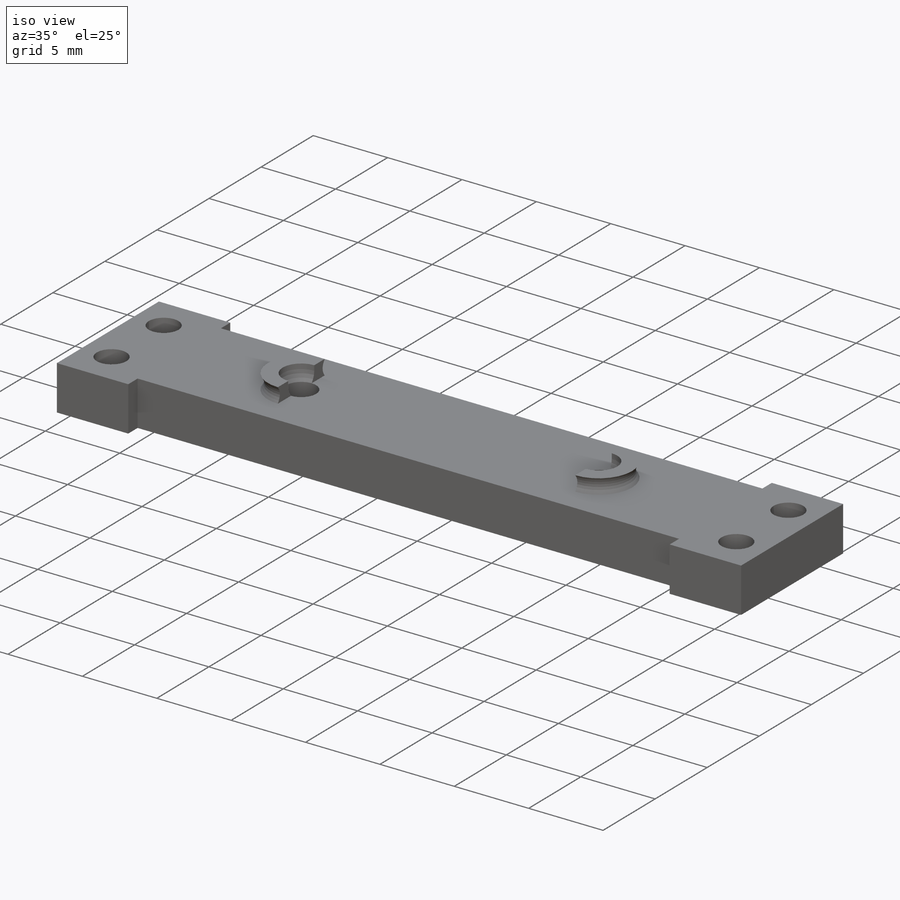
[diagram: iso view]
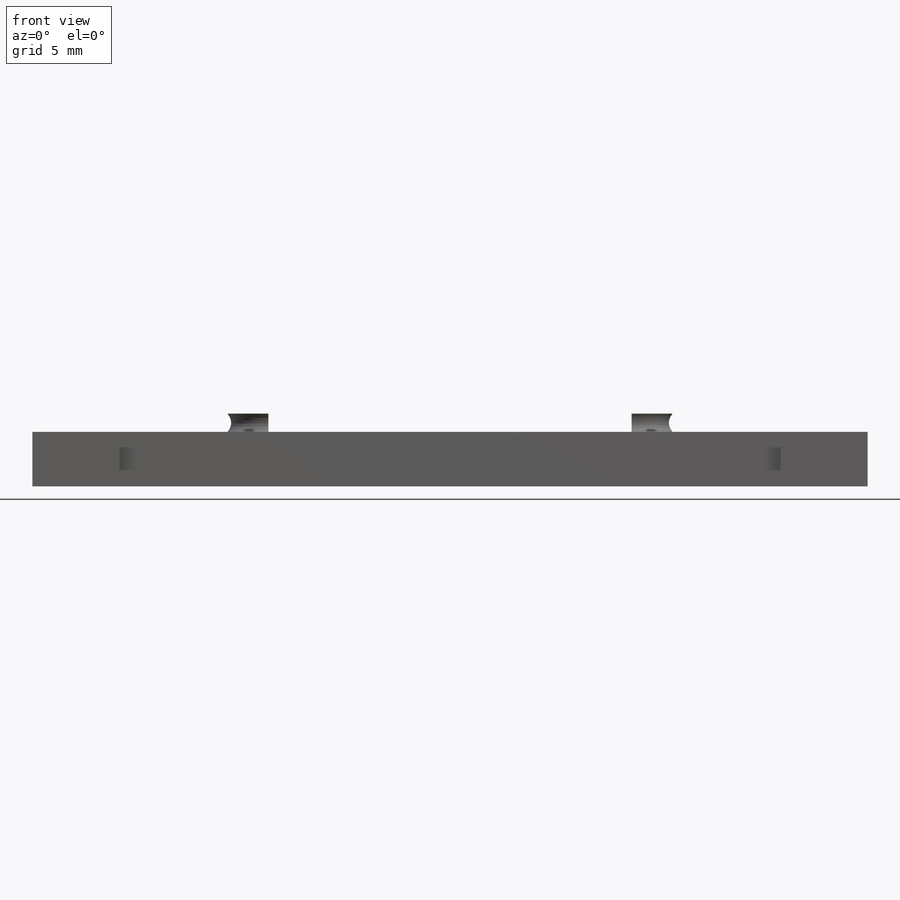
[diagram: front view]
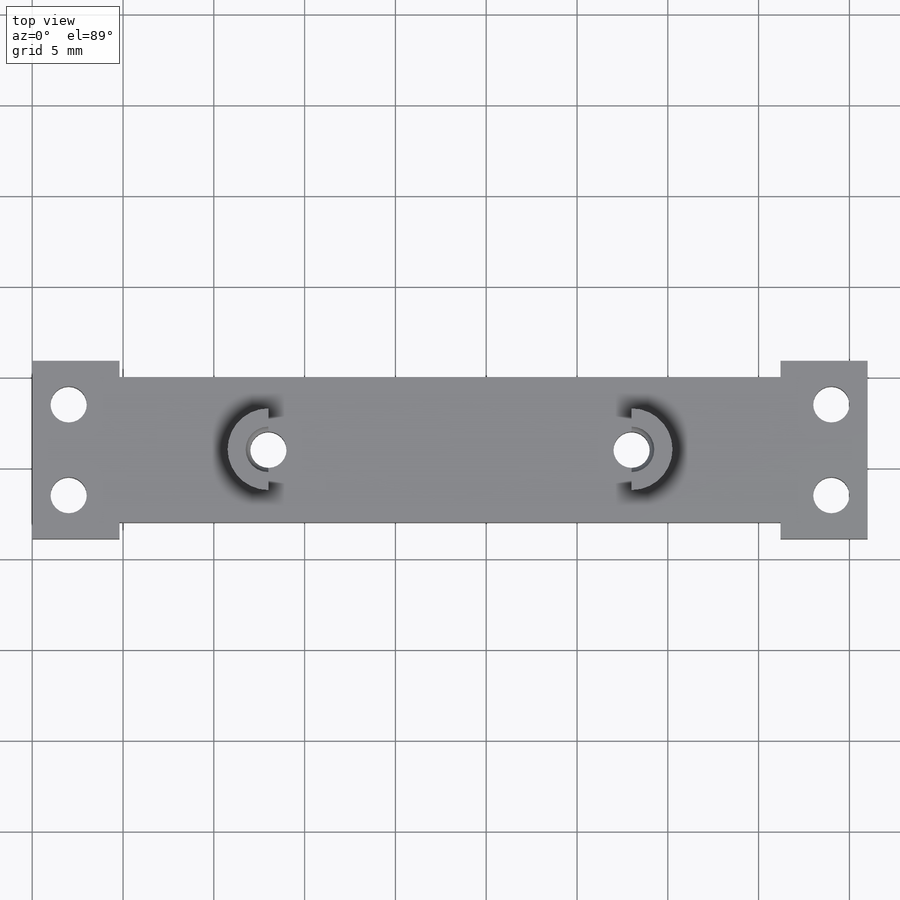
[diagram: top view]
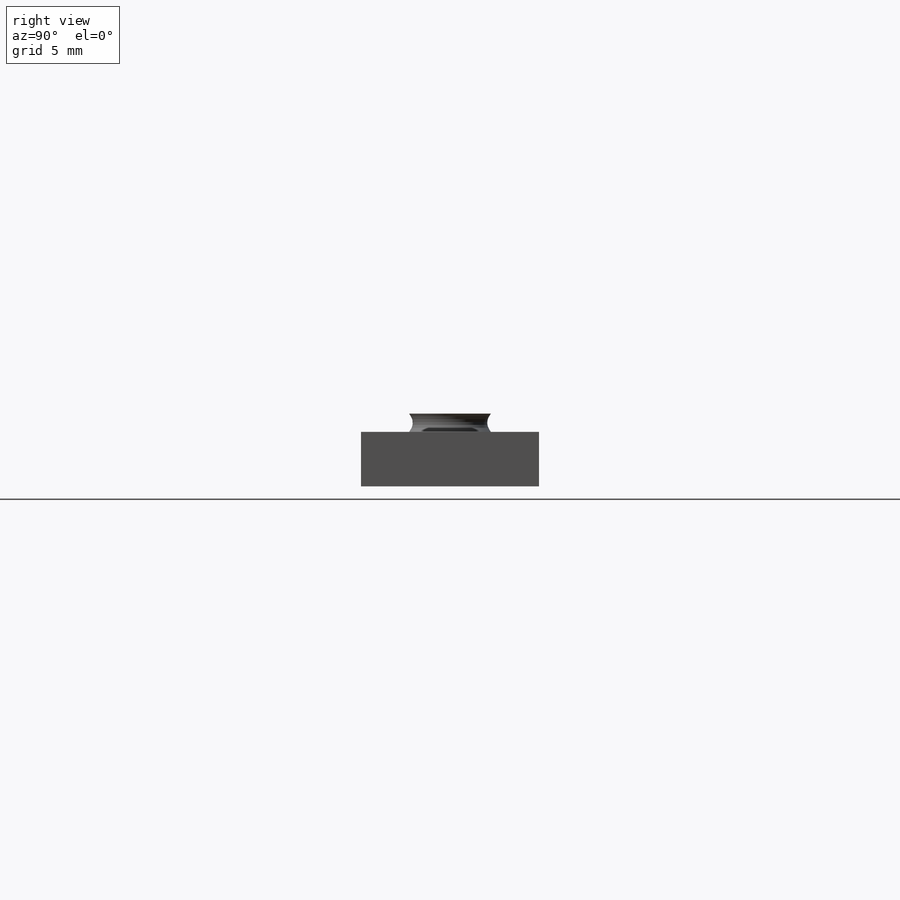
[diagram: right view]
SOLIDWORKS PART (.sldprt)
format: sldprt  version: not decoded by parser v0  size: 496,128 bytes
history: native  units: mm
features: sketch x18, cut_extrude x6, extrude x4, sweep x4, plane x3, fillet x2, material x1 (+9 scaffold rows collapsed)
feature tree (47):
  scaffold x9  (default folders/planes/origin — collapsed)
  material  "材质 <未指定>"
  plane  "前视基准面"
  plane  "上视基准面"
  plane  "右视基准面"
  sketch  "草图1"  dims[c1.D5=2.0mm c1.D6=2.0mm c1.D11=2.0mm c1.D12=2.0mm c1.D1=8.0mm c1.D2=36.0mm c1.D3=36.0mm c1.D4=~33.532799mm c2.D5=21.0mm c2.D6=21.0mm c2.D7=1.0mm c2.D8=1.0mm c2.D9=1.0mm c2.D10=1.0mm c2.D11=2.5mm c2.D12=2.5mm c2.D13=42.0mm c2.D14=~12.532799mm c2.D4=23.0mm c3.D14=23.0mm]
  extrude  "凸台-拉伸2"  Depth=4mm
  sketch  "草图2"  dims[c1.D1=4.5mm c1.D4=4.5mm c2.D1=~2.234155mm c2.D2=2.25mm c2.D3=1.25mm c3.D1=2.25mm c3.D2=4.5mm c3.D4=4.5mm c3.D5=2.25mm c4.D2=7.9mm c4.D3=7.9mm c4.D5=7.9mm c5.D2=8.0mm c5.D1=7.9mm c5.D3=7.9mm c5.D4=15.8mm c6.D1=7.9mm c6.D3=7.9mm]
  extrude  "凸台-拉伸3"  Depth=1mm
  sketch  "草图3"  dims[D3=1.5mm D4=1.5mm D1=7.9mm D2=7.9mm]
  cut_extrude  "切除-拉伸2"  Depth=1mm
  sketch  "草图4"  dims[D1=0.6mm D2=0.6mm]
  sketch  "草图5"
  sweep  "切除-扫描2"
  sketch  "草图8"  dims[D1=0.6mm D2=0.6mm]
  sketch  "草图9"
  sweep  "切除-扫描3"
  sketch  "草图10"
  cut_extrude  "切除-拉伸3"  Depth=3mm
  sketch  "草图11"  dims[D1=10.0mm]
  cut_extrude  "切除-拉伸4"  Depth=10mm
  sketch  "草图12"  dims[D3=2.25mm D4=2.25mm D5=1.25mm D6=1.25mm D1=10.0mm D2=10.0mm]
  extrude  "凸台-拉伸4"  Depth=1mm
  sketch  "草图13"  dims[D1=0.8mm]
  sketch  "草图14"
  sweep  "切除-扫描4"
  sketch  "草图15"  dims[D1=0.8mm]
  sketch  "草图16"
  sweep  "切除-扫描5"
  sketch  "草图17"  dims[D1=0.2mm D2=0.2mm D3=0.2mm D4=0.2mm]
  cut_extrude  "切除-拉伸6"  Depth=4mm
  sketch  "草图18"  dims[D1=0.1mm D2=0.1mm D3=0.1mm D4=0.1mm]
  cut_extrude  "切除-拉伸7"  Depth=4mm
  sketch  "草图19"  dims[D1=2.0mm D2=2.0mm]
  cut_extrude  "切除-拉伸8"  Depth=4mm
  fillet  "圆角1"  Radius=1mm
  fillet  "圆角2"  Radius=1mm
  sketch  "草图21"
  extrude  "凸台-拉伸5"  Depth=2mm
decode coverage: 24 of 34 modeling features carry decoded parameters
note: ~ marks probable driven/reference dimensions
summary: profile_refs inferred from adjacent sketches, not decoded
note: suppression state not decoded; provenance and decode notes live in map.json
